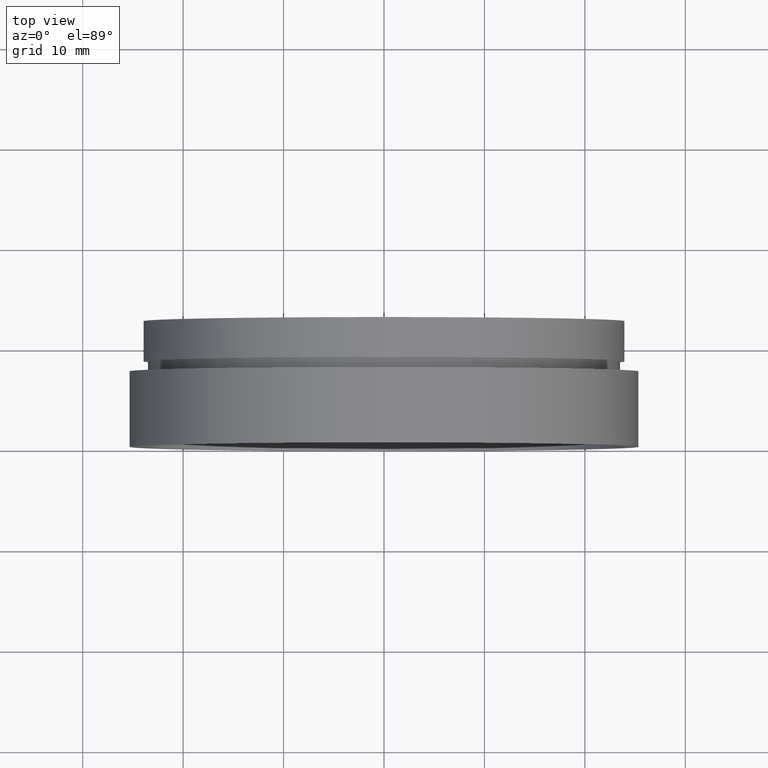
[diagram: clean part render]
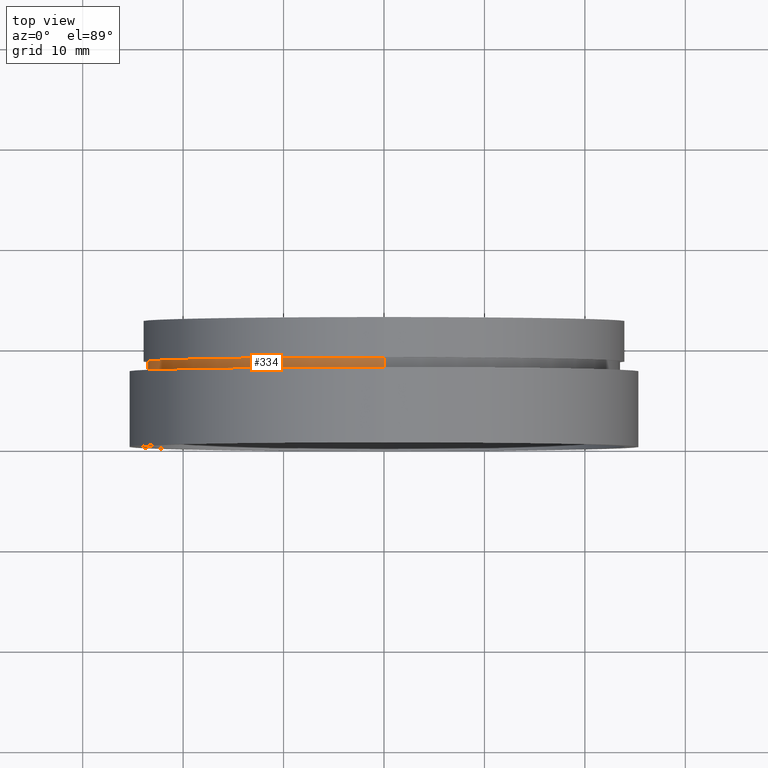
[diagram: same view with one face highlighted and labeled with its STEP entity id]
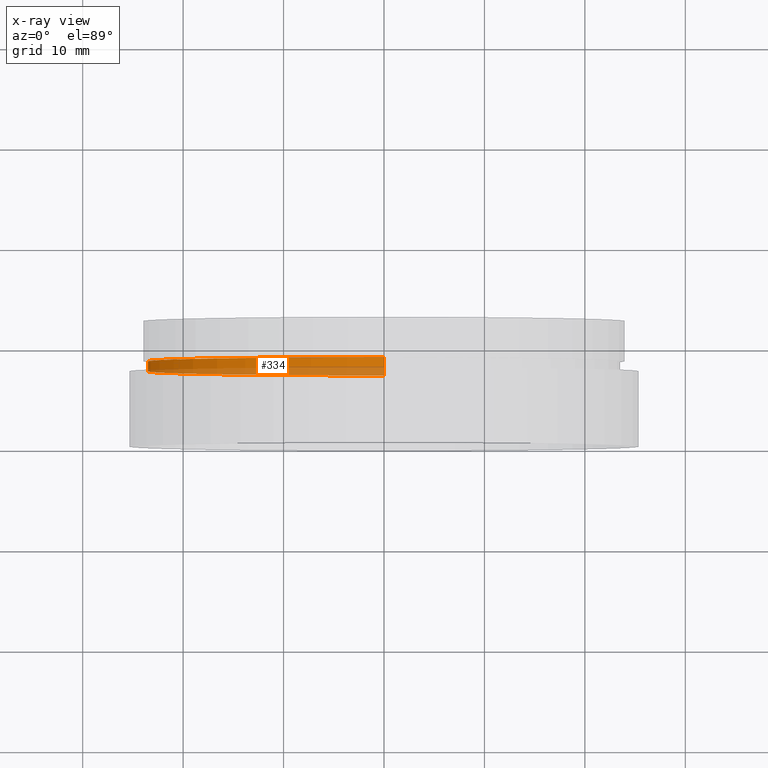
[diagram: x-ray of the same camera — body ghosted, the highlighted face saturated]
A machine part, top view. The second image highlights one B-rep face of the part: STEP entity #334.
The next image is the same camera in x-ray: the body ghosted, the highlighted face saturated — about 39% of this face is hidden behind the body in this view.
In plain terms, the highlighted cylindrical surface (partial cylindrical patch) has radius 23.5 mm, axis along (-0, 1, -0).
Its self-contained STEP definition (entity closure, byte-faithful):
#5 = EDGE_CURVE ( 'NONE', #333, #324, #274, .T. ) ;
#6 = VERTEX_POINT ( 'NONE', #571 ) ;
#57 = CARTESIAN_POINT ( 'NONE',  ( 0.0000000000000000000, 7.499999999999978700, 23.50000000000001800 ) ) ;
#74 = CARTESIAN_POINT ( 'NONE',  ( 0.0000000000000000000, 8.499999999999980500, 0.0000000000000000000 ) ) ;
#77 = AXIS2_PLACEMENT_3D ( 'NONE', #112, #391, #312 ) ;
#100 = AXIS2_PLACEMENT_3D ( 'NONE', #74, #401, #122 ) ;
#112 = CARTESIAN_POINT ( 'NONE',  ( 0.0000000000000000000, 161.3761669434274500, 0.0000000000000000000 ) ) ;
#120 = ORIENTED_EDGE ( 'NONE', *, *, #5, .T. ) ;
#121 = CARTESIAN_POINT ( 'NONE',  ( 2.877919977996282300E-015, 7.499999999999978700, -23.50000000000001800 ) ) ;
#122 = DIRECTION ( 'NONE',  ( 0.0000000000000000000, 0.0000000000000000000, 1.000000000000000000 ) ) ;
#147 = EDGE_CURVE ( 'NONE', #333, #305, #489, .T. ) ;
#157 = ORIENTED_EDGE ( 'NONE', *, *, #147, .F. ) ;
#160 = CARTESIAN_POINT ( 'NONE',  ( 2.877919977996282300E-015, 161.3761669434274500, -23.50000000000001800 ) ) ;
#161 = EDGE_LOOP ( 'NONE', ( #157, #120, #376, #257 ) ) ;
#168 = CARTESIAN_POINT ( 'NONE',  ( 0.0000000000000000000, 161.3761669434274500, 23.50000000000001800 ) ) ;
#201 = FACE_OUTER_BOUND ( 'NONE', #161, .T. ) ;
#203 = EDGE_CURVE ( 'NONE', #305, #6, #586, .T. ) ;
#257 = ORIENTED_EDGE ( 'NONE', *, *, #203, .F. ) ;
#274 = CIRCLE ( 'NONE', #395, 23.50000000000001800 ) ;
#305 = VERTEX_POINT ( 'NONE', #348 ) ;
#312 = DIRECTION ( 'NONE',  ( 0.0000000000000000000, 0.0000000000000000000, 1.000000000000000000 ) ) ;
#324 = VERTEX_POINT ( 'NONE', #57 ) ;
#333 = VERTEX_POINT ( 'NONE', #121 ) ;
#334 = ADVANCED_FACE ( 'NONE', ( #201 ), #605, .T. ) ;
#340 = CARTESIAN_POINT ( 'NONE',  ( 0.0000000000000000000, 7.499999999999978700, 0.0000000000000000000 ) ) ;
#341 = DIRECTION ( 'NONE',  ( 0.0000000000000000000, 0.0000000000000000000, 1.000000000000000000 ) ) ;
#344 = VECTOR ( 'NONE', #394, 1000.000000000000000 ) ;
#348 = CARTESIAN_POINT ( 'NONE',  ( 2.877919977996282300E-015, 8.499999999999980500, -23.50000000000001800 ) ) ;
#366 = DIRECTION ( 'NONE',  ( -0.0000000000000000000, 1.000000000000000000, -0.0000000000000000000 ) ) ;
#376 = ORIENTED_EDGE ( 'NONE', *, *, #454, .T. ) ;
#378 = DIRECTION ( 'NONE',  ( -0.0000000000000000000, 1.000000000000000000, -0.0000000000000000000 ) ) ;
#391 = DIRECTION ( 'NONE',  ( -0.0000000000000000000, 1.000000000000000000, -0.0000000000000000000 ) ) ;
#394 = DIRECTION ( 'NONE',  ( -0.0000000000000000000, 1.000000000000000000, -0.0000000000000000000 ) ) ;
#395 = AXIS2_PLACEMENT_3D ( 'NONE', #340, #378, #341 ) ;
#401 = DIRECTION ( 'NONE',  ( -0.0000000000000000000, 1.000000000000000000, -0.0000000000000000000 ) ) ;
#454 = EDGE_CURVE ( 'NONE', #324, #6, #505, .T. ) ;
#489 = LINE ( 'NONE', #160, #606 ) ;
#505 = LINE ( 'NONE', #168, #344 ) ;
#571 = CARTESIAN_POINT ( 'NONE',  ( 0.0000000000000000000, 8.499999999999980500, 23.50000000000001800 ) ) ;
#586 = CIRCLE ( 'NONE', #100, 23.50000000000001800 ) ;
#605 = CYLINDRICAL_SURFACE ( 'NONE', #77, 23.50000000000001800 ) ;
#606 = VECTOR ( 'NONE', #366, 1000.000000000000000 ) ;